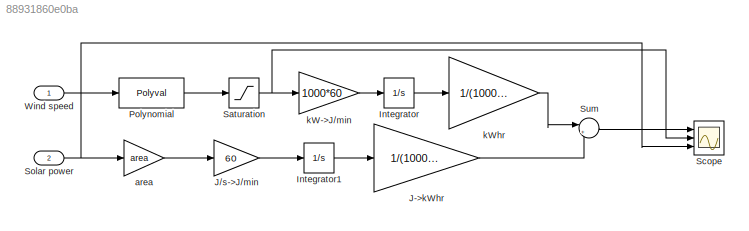
MODEL slx_88931860e0ba
KIND model
CONFIG AbsTol = auto
CONFIG FixedStep = auto
CONFIG MaxStep = auto
CONFIG MinStep = auto
CONFIG RelTol = 1e-3
CONFIG SampleTimeConstraint = Unconstrained
CONFIG Solver = ode45
CONFIG SolverMode = Auto
CONFIG SolverName = ode45
CONFIG StartTime = 0.0
CONFIG StopTime = time(end)
WORKSPACE source: external: MATLAB File  (data not in archive)
BLOCK [Integrator] Integrator
  Ports = [1, 1]
BLOCK [Integrator] Integrator1
  Ports = [1, 1]
BLOCK [Gain] J->kWhr
  Gain = 1/(1000*3600)
  OutDataTypeStr = Inherit: Inherit via internal rule
  ParamDataTypeStr = Inherit: Inherit via internal rule
  SaturateOnIntegerOverflow = off
BLOCK [Gain] J//s->J//min
  Gain = 60
  OutDataTypeStr = Inherit: Inherit via internal rule
  ParamDataTypeStr = Inherit: Inherit via internal rule
  SaturateOnIntegerOverflow = off
BLOCK [Polyval] Polynomial
  Coefs = pcoef5
BLOCK [Saturate] Saturation
  InputPortMap = u0
  LowerLimit = 0
  OutMax = [10]
  Ports = [1, 1]
  UpperLimit = max_output
BLOCK [Scope] Scope
  Floating = off
  NumInputPorts = 3
  Ports = [3]
  YMax = 5~5~5
  YMin = -5~-5~-5
BLOCK [Inport] Solar power
  IconDisplay = Port number
  Port = 2
BLOCK [Sum] Sum
  IconShape = round
  InputSameDT = off
  Inputs = |++
  OutDataTypeStr = Inherit: Inherit via internal rule
  Ports = [2, 1]
  SaturateOnIntegerOverflow = off
BLOCK [Inport] Wind speed
  IconDisplay = Port number
BLOCK [Gain] area
  Gain = area
  OutDataTypeStr = Inherit: Inherit via internal rule
  ParamDataTypeStr = Inherit: Inherit via internal rule
  SaturateOnIntegerOverflow = off
BLOCK [Gain] kW->J//min
  Gain = 1000*60
  OutDataTypeStr = Inherit: Inherit via internal rule
  ParamDataTypeStr = Inherit: Inherit via internal rule
  SaturateOnIntegerOverflow = off
BLOCK [Gain] kWhr
  Gain = 1/(1000*3600)
  OutDataTypeStr = Inherit: Inherit via internal rule
  ParamDataTypeStr = Inherit: Inherit via internal rule
  SaturateOnIntegerOverflow = off
LINE Integrator1:1 -> J->kWhr:1
LINE Integrator:1 -> kWhr:1
LINE J->kWhr:1 -> Sum:2
LINE J//s->J//min:1 -> Integrator1:1
LINE Polynomial:1 -> Saturation:1
NET Saturation:1 -> Scope:2, kW->J//min:1
NET Solar power:1 -> Scope:3, area:1
LINE Sum:1 -> Scope:1
LINE Wind speed:1 -> Polynomial:1
LINE area:1 -> J//s->J//min:1
LINE kW->J//min:1 -> Integrator:1
LINE kWhr:1 -> Sum:1
note: NET lines group one-source signal fan-out (src -> all destinations, sorted); 1:1 wires keep LINE
